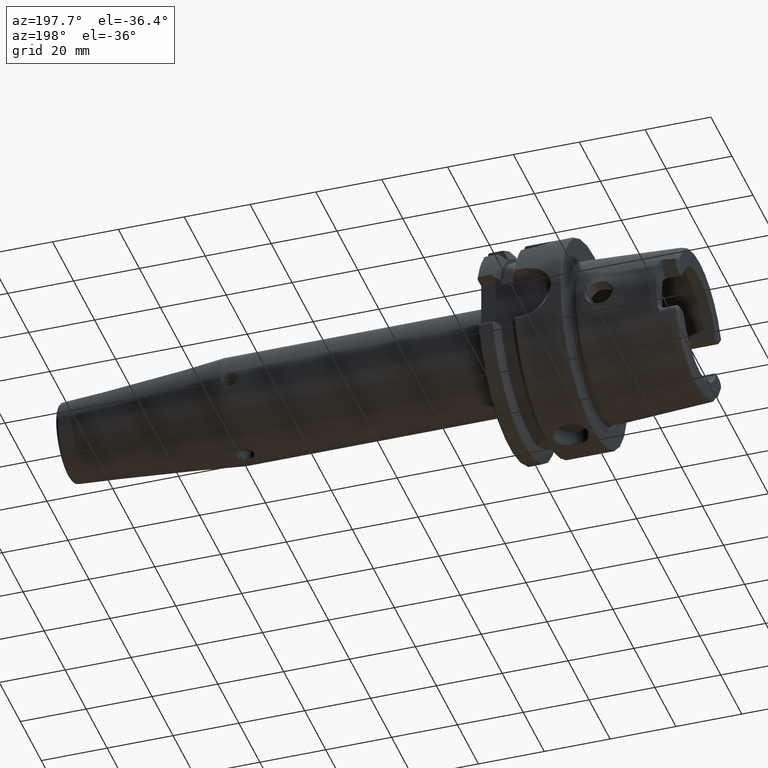
[diagram: clean part render]
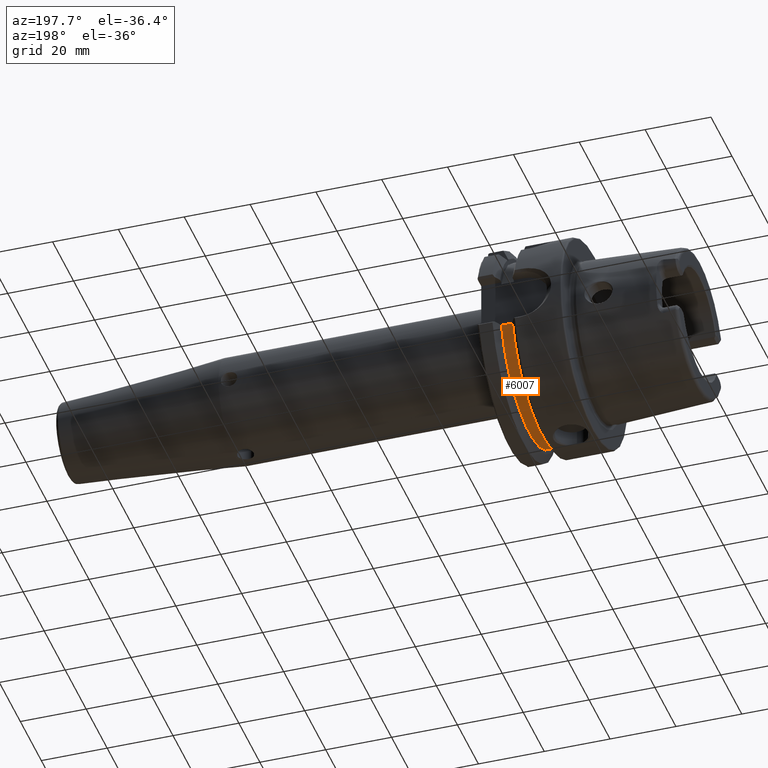
[diagram: same view with one face highlighted and labeled with its STEP entity id]
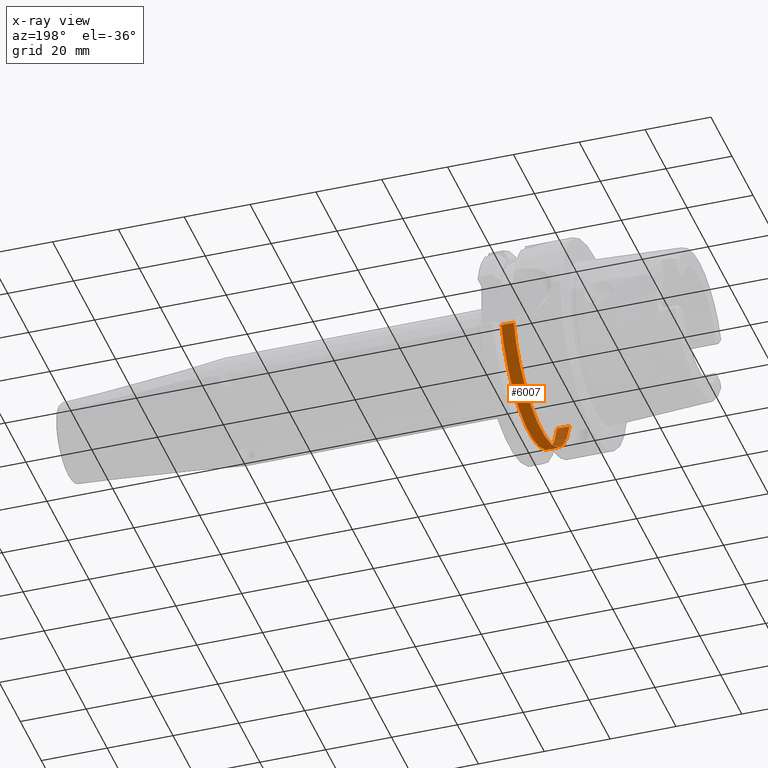
[diagram: x-ray of the same camera — body ghosted, the highlighted face saturated]
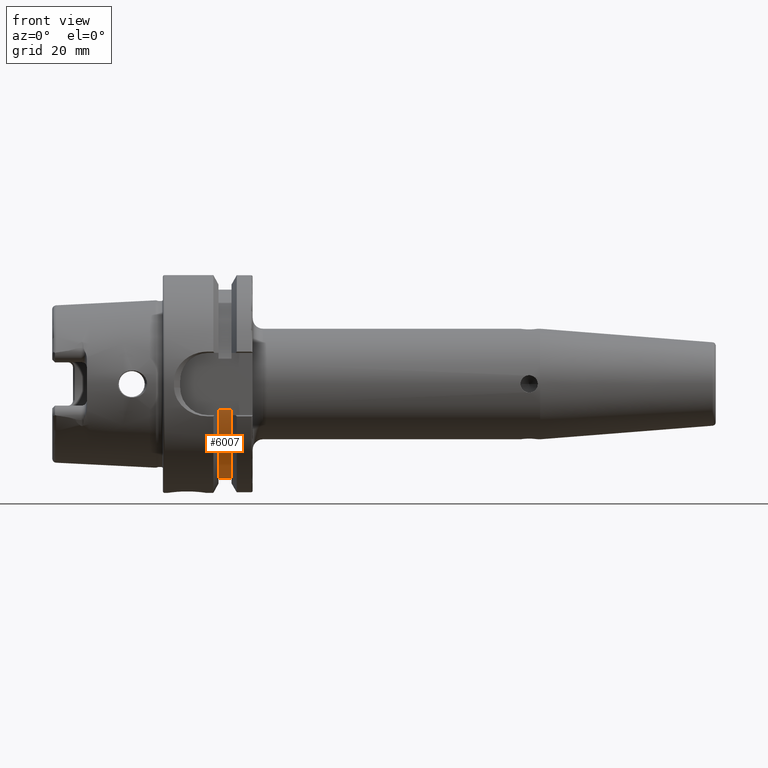
[diagram: same view with one face highlighted and labeled with its STEP entity id]
A machine part, auxiliary view. The second image highlights one B-rep face of the part: STEP entity #6007.
The next image is the same camera in x-ray: the body ghosted, the highlighted face saturated — about 11% of this face is hidden behind the body in this view.
A second angle (front view) of the same face is appended — the face is thin or edge-on in the first view.
In plain terms, the highlighted cylindrical surface (partial cylindrical patch) has radius 27.5 mm, axis along (1, 0, 0).
Its self-contained STEP definition (entity closure, byte-faithful):
#2531=DIRECTION('',(1.E0,0.E0,0.E0));
#2532=VECTOR('',#2531,3.75E0);
#2533=CARTESIAN_POINT('',(1.6125E1,-2.65E1,-7.348469228350E0));
#2534=LINE('',#2533,#2532);
#2535=CARTESIAN_POINT('',(1.9875E1,0.E0,0.E0));
#2536=DIRECTION('',(1.E0,0.E0,0.E0));
#2537=DIRECTION('',(0.E0,-9.636363636364E-1,-2.672170628491E-1));
#2538=AXIS2_PLACEMENT_3D('',#2535,#2536,#2537);
#2540=DIRECTION('',(1.E0,0.E0,0.E0));
#2541=VECTOR('',#2540,3.75E0);
#2542=CARTESIAN_POINT('',(1.6125E1,2.65E1,-7.348469228350E0));
#2543=LINE('',#2542,#2541);
#2544=CARTESIAN_POINT('',(1.6125E1,0.E0,0.E0));
#2545=DIRECTION('',(-1.E0,0.E0,0.E0));
#2546=DIRECTION('',(0.E0,9.636363636364E-1,-2.672170628491E-1));
#2547=AXIS2_PLACEMENT_3D('',#2544,#2545,#2546);
#2768=CARTESIAN_POINT('',(1.6125E1,2.65E1,-7.348469228350E0));
#2770=VERTEX_POINT('',#2768);
#2779=CARTESIAN_POINT('',(1.9875E1,2.65E1,-7.348469228350E0));
#2780=VERTEX_POINT('',#2779);
#2800=CARTESIAN_POINT('',(1.6125E1,-2.65E1,-7.348469228350E0));
#2802=VERTEX_POINT('',#2800);
#2813=CARTESIAN_POINT('',(1.9875E1,-2.65E1,-7.348469228350E0));
#2814=VERTEX_POINT('',#2813);
#5996=CARTESIAN_POINT('',(0.E0,0.E0,0.E0));
#5997=DIRECTION('',(1.E0,0.E0,0.E0));
#5998=DIRECTION('',(0.E0,0.E0,1.E0));
#5999=AXIS2_PLACEMENT_3D('',#5996,#5997,#5998);
#6000=CYLINDRICAL_SURFACE('',#5999,2.75E1);
#6001=ORIENTED_EDGE('',*,*,#5517,.T.);
#6002=ORIENTED_EDGE('',*,*,#5726,.T.);
#6003=ORIENTED_EDGE('',*,*,#5791,.F.);
#6004=ORIENTED_EDGE('',*,*,#5463,.T.);
#6005=EDGE_LOOP('',(#6001,#6002,#6003,#6004));
#6006=FACE_OUTER_BOUND('',#6005,.F.);
#6007=ADVANCED_FACE('',(#6006),#6000,.T.);
#2539=CIRCLE('',#2538,2.75E1);
#2548=CIRCLE('',#2547,2.75E1);
#5463=EDGE_CURVE('',#2770,#2802,#2548,.T.);
#5517=EDGE_CURVE('',#2802,#2814,#2534,.T.);
#5726=EDGE_CURVE('',#2814,#2780,#2539,.T.);
#5791=EDGE_CURVE('',#2770,#2780,#2543,.T.);